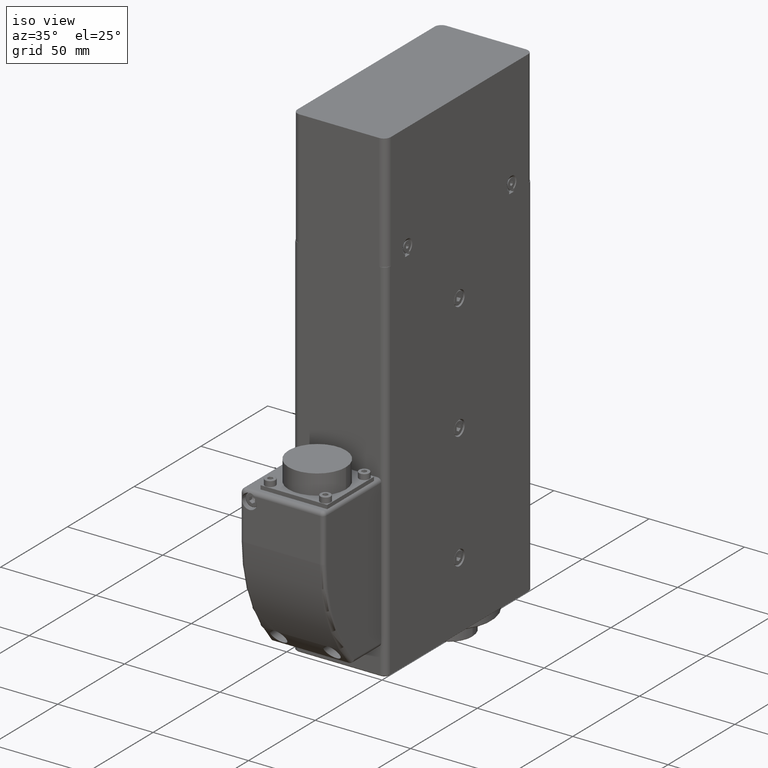
[diagram: clean part render]
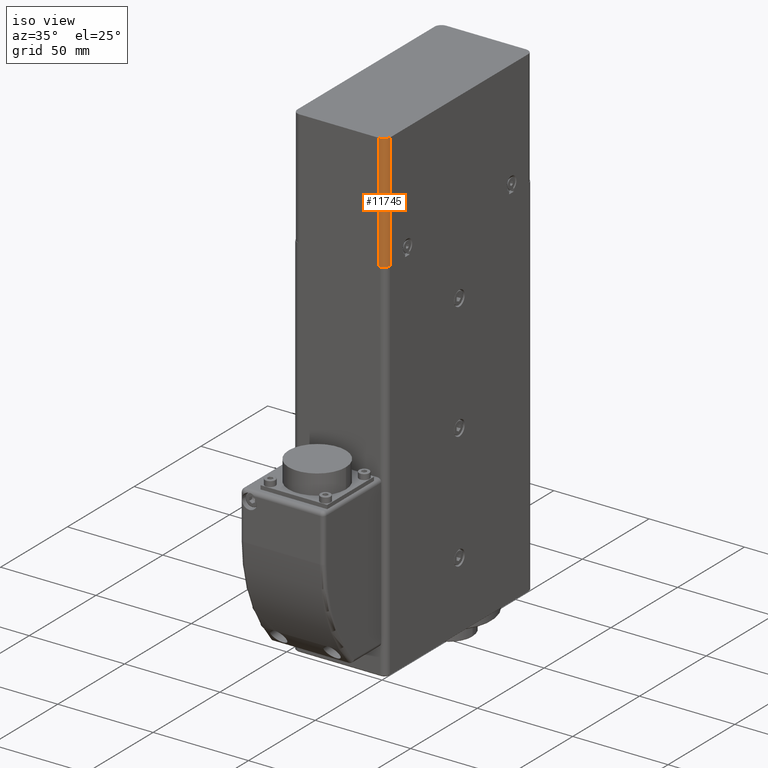
[diagram: same view with one face highlighted and labeled with its STEP entity id]
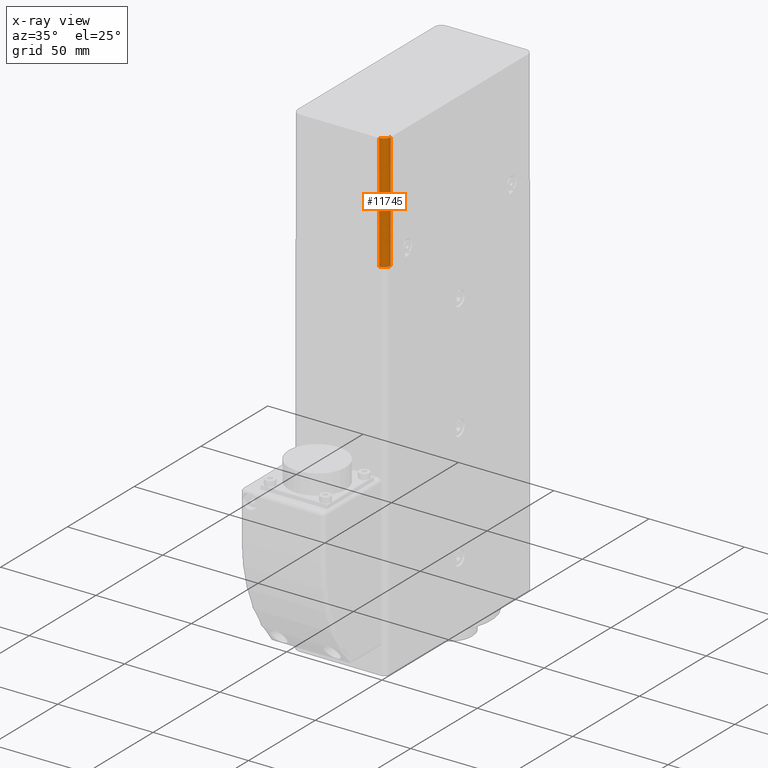
[diagram: x-ray of the same camera — body ghosted, the highlighted face saturated]
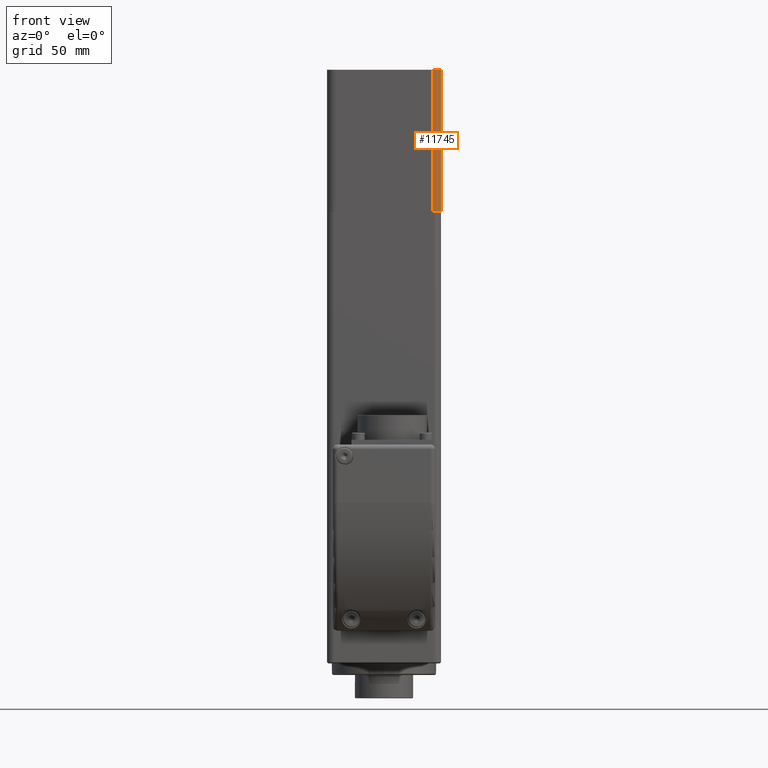
[diagram: same view with one face highlighted and labeled with its STEP entity id]
A machine part, iso view. The second image highlights one B-rep face of the part: STEP entity #11745.
The next image is the same camera in x-ray: the body ghosted, the highlighted face saturated — about 0% of this face is hidden behind the body in this view.
A second angle (front view) of the same face is appended — the face is thin or edge-on in the first view.
In plain terms, the highlighted cylindrical surface (edge-blend (fillet) strip) has radius 3.6 mm, axis along (0, -0, -1).
Its self-contained STEP definition (entity closure, byte-faithful):
#514=CYLINDRICAL_SURFACE('',#12872,3.6);
#1031=CIRCLE('',#12864,3.6);
#1035=CIRCLE('',#12873,3.6);
#1624=FACE_OUTER_BOUND('',#2403,.T.);
#2403=EDGE_LOOP('',(#9298,#9299,#9300,#9301));
#3304=LINE('',#19475,#4186);
#3305=LINE('',#19478,#4187);
#4186=VECTOR('',#15616,10.);
#4187=VECTOR('',#15619,10.);
#4924=VERTEX_POINT('',#18480);
#5095=VERTEX_POINT('',#19082);
#5159=VERTEX_POINT('',#19474);
#5160=VERTEX_POINT('',#19476);
#6595=EDGE_CURVE('',#4924,#5095,#1031,.T.);
#6604=EDGE_CURVE('',#4924,#5159,#3304,.T.);
#6605=EDGE_CURVE('',#5159,#5160,#1035,.F.);
#6606=EDGE_CURVE('',#5160,#5095,#3305,.T.);
#9298=ORIENTED_EDGE('',*,*,#6595,.F.);
#9299=ORIENTED_EDGE('',*,*,#6604,.T.);
#9300=ORIENTED_EDGE('',*,*,#6605,.T.);
#9301=ORIENTED_EDGE('',*,*,#6606,.T.);
#11745=ADVANCED_FACE('',(#1624),#514,.T.);
#12864=AXIS2_PLACEMENT_3D('',#19456,#15593,#15594);
#12872=AXIS2_PLACEMENT_3D('',#19473,#15614,#15615);
#12873=AXIS2_PLACEMENT_3D('',#19477,#15617,#15618);
#15593=DIRECTION('center_axis',(0.,0.,-1.));
#15594=DIRECTION('ref_axis',(0.707106781186549,-0.707106781186546,3.02444092201587E-16));
#15614=DIRECTION('center_axis',(3.69778549322349E-32,-4.27720537051104E-16,
-1.));
#15615=DIRECTION('ref_axis',(0.707106781186549,-0.707106781186546,3.02444092201587E-16));
#15616=DIRECTION('',(-3.69778549322349E-32,4.27720537051104E-16,1.));
#15617=DIRECTION('center_axis',(-3.69778549322349E-32,4.27720537051104E-16,
1.));
#15618=DIRECTION('ref_axis',(0.707106781186549,-0.707106781186546,3.02444092201587E-16));
#15619=DIRECTION('',(3.69778549322349E-32,-4.27720537051104E-16,-1.));
#18480=CARTESIAN_POINT('',(24.5,-78.4,180.));
#19082=CARTESIAN_POINT('',(20.9,-82.,180.));
#19456=CARTESIAN_POINT('Origin',(20.9,-78.4,180.));
#19473=CARTESIAN_POINT('Origin',(20.9,-78.4,239.4));
#19474=CARTESIAN_POINT('',(24.5,-78.4,241.));
#19475=CARTESIAN_POINT('',(24.5,-78.4,239.4));
#19476=CARTESIAN_POINT('',(20.9,-82.,241.));
#19477=CARTESIAN_POINT('Origin',(20.9,-78.4,241.));
#19478=CARTESIAN_POINT('',(20.9,-82.,239.4));